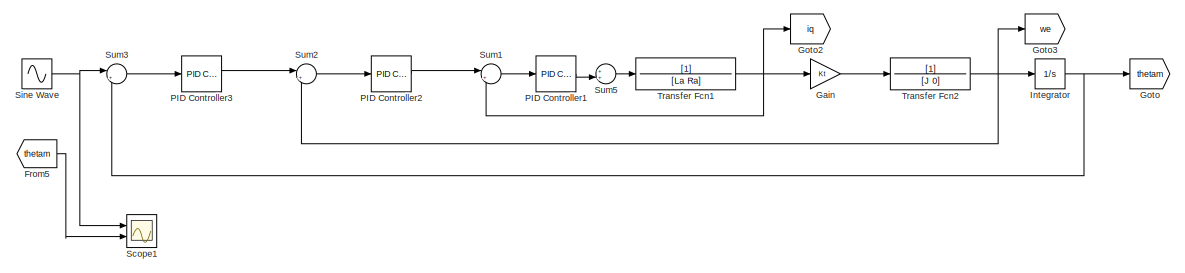
[diagram: root canvas - part 1/6, top left region]
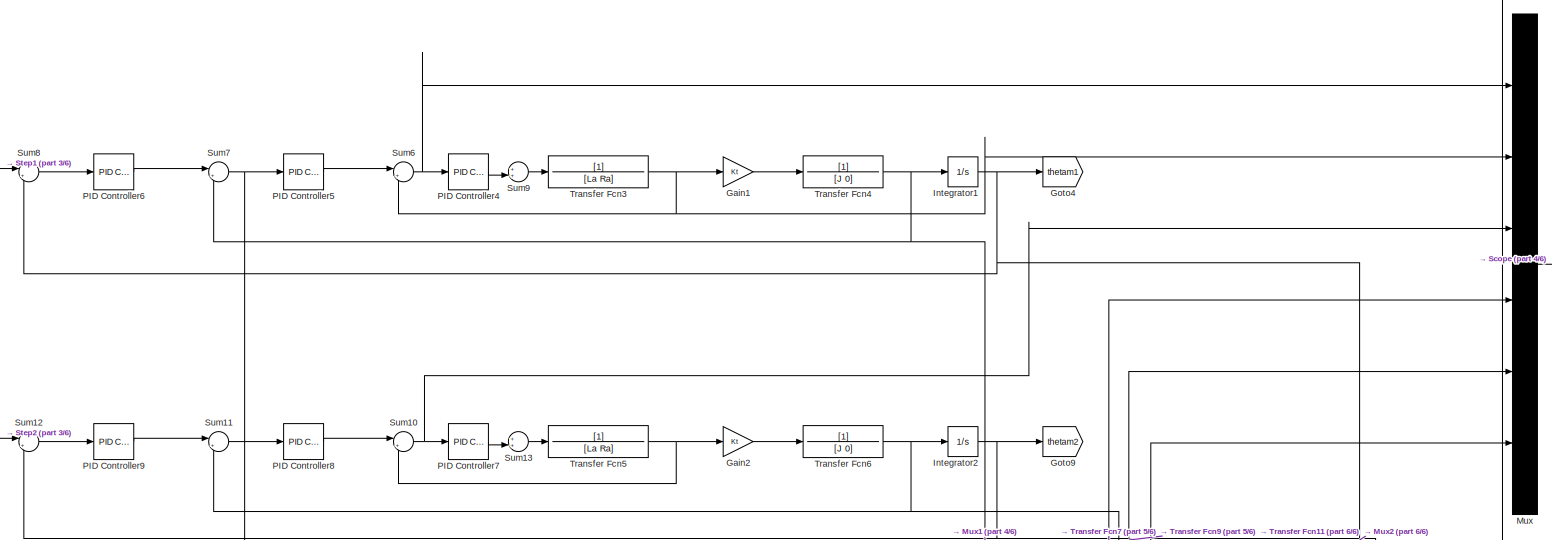
[diagram: root canvas - part 2/6, top center region]
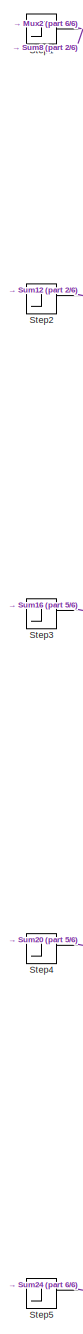
[diagram: root canvas - part 3/6, center side, full height]
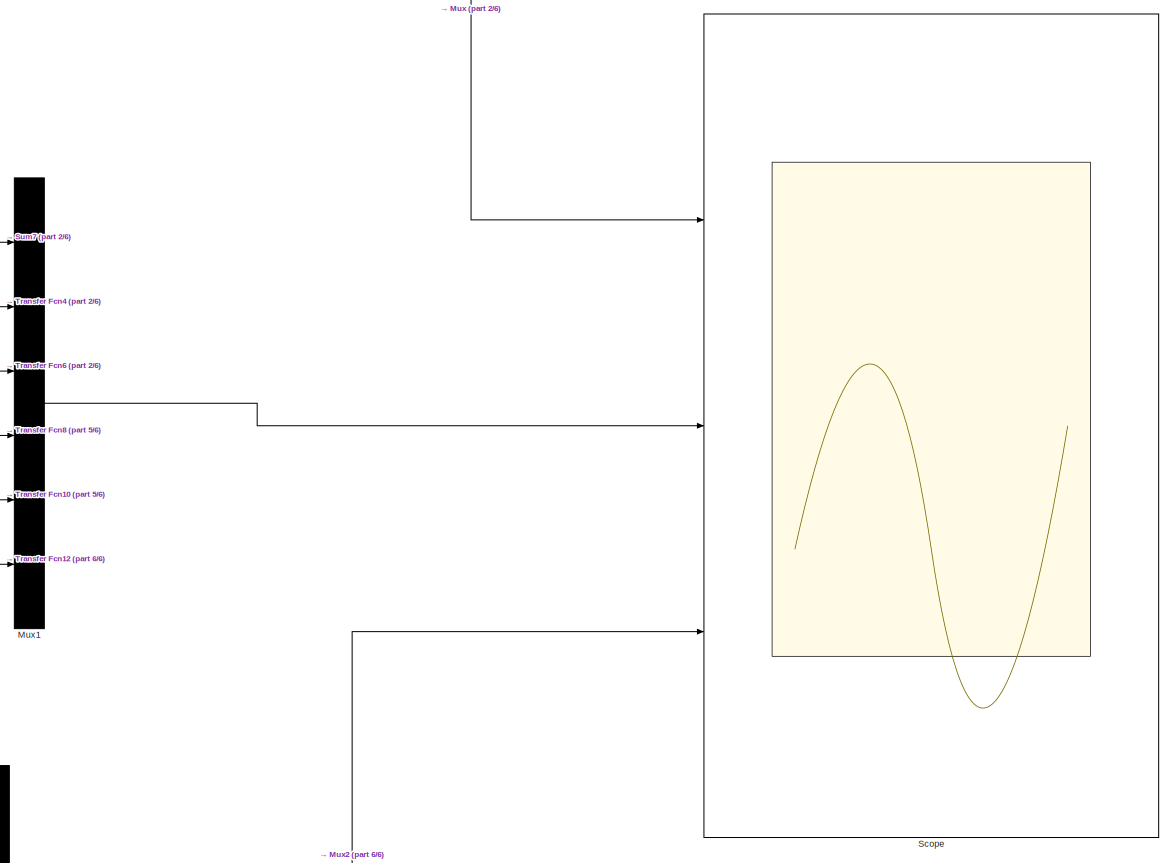
[diagram: root canvas - part 4/6, middle right region]
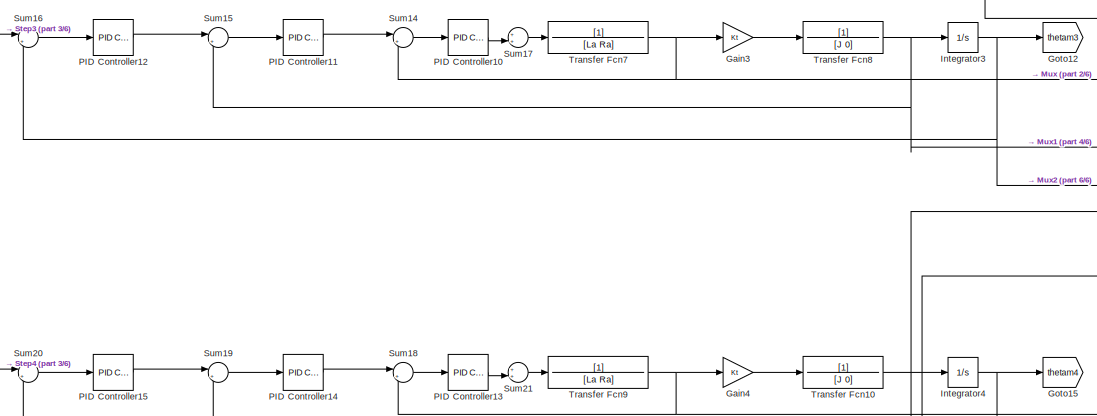
[diagram: root canvas - part 5/6, central region]
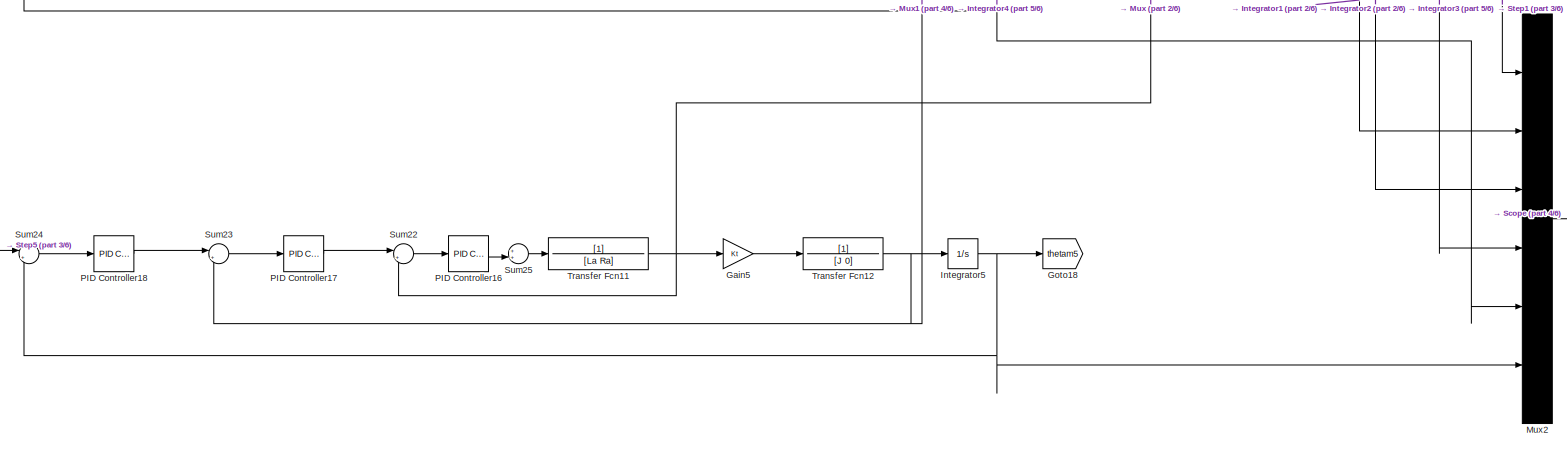
[diagram: root canvas - part 6/6, bottom center region]
MODEL slx_95a5ea91d995
KIND model
CONFIG AbsTol = auto
CONFIG EnableMultiTasking = off
CONFIG FixedStep = auto
CONFIG MaxStep = auto
CONFIG MinStep = auto
CONFIG RelTol = 1e-3
CONFIG SampleTimeConstraint = Unconstrained
CONFIG SolverName = VariableStepAuto
CONFIG StartTime = 0.0
CONFIG StopTime = 50
WORKSPACE source: mxarray member
WORKSPACE J = 4.09e-05
WORKSPACE Kt = 0.53
WORKSPACE La = 0.0101
WORKSPACE Ra = 1.6
BLOCK [From] From5
  GotoTag = thetam
BLOCK [Gain] Gain
  Gain = Kt
BLOCK [Gain] Gain1
  Commented = on
  Gain = Kt
BLOCK [Gain] Gain2
  Commented = on
  Gain = Kt
BLOCK [Gain] Gain3
  Commented = on
  Gain = Kt
BLOCK [Gain] Gain4
  Commented = on
  Gain = Kt
BLOCK [Gain] Gain5
  Commented = on
  Gain = Kt
BLOCK [Goto] Goto
  GotoTag = thetam
BLOCK [Goto] Goto12
  Commented = on
  GotoTag = thetam3
BLOCK [Goto] Goto15
  Commented = on
  GotoTag = thetam4
BLOCK [Goto] Goto18
  Commented = on
  GotoTag = thetam5
BLOCK [Goto] Goto2
  GotoTag = iq
BLOCK [Goto] Goto3
  GotoTag = we
BLOCK [Goto] Goto4
  Commented = on
  GotoTag = thetam1
BLOCK [Goto] Goto9
  Commented = on
  GotoTag = thetam2
BLOCK [Integrator] Integrator
  Ports = [1, 1]
BLOCK [Integrator] Integrator1
  Commented = on
  Ports = [1, 1]
BLOCK [Integrator] Integrator2
  Commented = on
  Ports = [1, 1]
BLOCK [Integrator] Integrator3
  Commented = on
  Ports = [1, 1]
BLOCK [Integrator] Integrator4
  Commented = on
  Ports = [1, 1]
BLOCK [Integrator] Integrator5
  Commented = on
  Ports = [1, 1]
BLOCK [Mux] Mux
  Commented = on
  DisplayOption = bar
  Inputs = 6
  Ports = [6, 1]
BLOCK [Mux] Mux1
  Commented = on
  DisplayOption = bar
  Inputs = 6
  Ports = [6, 1]
BLOCK [Mux] Mux2
  Commented = on
  DisplayOption = bar
  Inputs = 6
  Ports = [6, 1]
BLOCK [Reference] PID Controller1  REF=slpidlib/PID Controller
  Ports = [1, 1]
  SourceBlock = slpidlib/PID Controller
  SourceProductBaseCode = SL
  SourceType = PID 1dof
BLOCK [Reference] PID Controller10  REF=slpidlib/PID Controller
  Commented = on
  Ports = [1, 1]
  SourceBlock = slpidlib/PID Controller
  SourceProductBaseCode = SL
  SourceType = PID 1dof
BLOCK [Reference] PID Controller11  REF=slpidlib/PID Controller
  Commented = on
  Ports = [1, 1]
  SourceBlock = slpidlib/PID Controller
  SourceProductBaseCode = SL
  SourceType = PID 1dof
BLOCK [Reference] PID Controller12  REF=slpidlib/PID Controller
  Commented = on
  Ports = [1, 1]
  SourceBlock = slpidlib/PID Controller
  SourceProductBaseCode = SL
  SourceType = PID 1dof
BLOCK [Reference] PID Controller13  REF=slpidlib/PID Controller
  Commented = on
  Ports = [1, 1]
  SourceBlock = slpidlib/PID Controller
  SourceProductBaseCode = SL
  SourceType = PID 1dof
BLOCK [Reference] PID Controller14  REF=slpidlib/PID Controller
  Commented = on
  Ports = [1, 1]
  SourceBlock = slpidlib/PID Controller
  SourceProductBaseCode = SL
  SourceType = PID 1dof
BLOCK [Reference] PID Controller15  REF=slpidlib/PID Controller
  Commented = on
  Ports = [1, 1]
  SourceBlock = slpidlib/PID Controller
  SourceProductBaseCode = SL
  SourceType = PID 1dof
BLOCK [Reference] PID Controller16  REF=slpidlib/PID Controller
  Commented = on
  Ports = [1, 1]
  SourceBlock = slpidlib/PID Controller
  SourceProductBaseCode = SL
  SourceType = PID 1dof
BLOCK [Reference] PID Controller17  REF=slpidlib/PID Controller
  Commented = on
  Ports = [1, 1]
  SourceBlock = slpidlib/PID Controller
  SourceProductBaseCode = SL
  SourceType = PID 1dof
BLOCK [Reference] PID Controller18  REF=slpidlib/PID Controller
  Commented = on
  Ports = [1, 1]
  SourceBlock = slpidlib/PID Controller
  SourceProductBaseCode = SL
  SourceType = PID 1dof
BLOCK [Reference] PID Controller2  REF=slpidlib/PID Controller
  Ports = [1, 1]
  SourceBlock = slpidlib/PID Controller
  SourceProductBaseCode = SL
  SourceType = PID 1dof
BLOCK [Reference] PID Controller3  REF=slpidlib/PID Controller
  Ports = [1, 1]
  SourceBlock = slpidlib/PID Controller
  SourceProductBaseCode = SL
  SourceType = PID 1dof
BLOCK [Reference] PID Controller4  REF=slpidlib/PID Controller
  Commented = on
  Ports = [1, 1]
  SourceBlock = slpidlib/PID Controller
  SourceProductBaseCode = SL
  SourceType = PID 1dof
BLOCK [Reference] PID Controller5  REF=slpidlib/PID Controller
  Commented = on
  Ports = [1, 1]
  SourceBlock = slpidlib/PID Controller
  SourceProductBaseCode = SL
  SourceType = PID 1dof
BLOCK [Reference] PID Controller6  REF=slpidlib/PID Controller
  Commented = on
  Ports = [1, 1]
  SourceBlock = slpidlib/PID Controller
  SourceProductBaseCode = SL
  SourceType = PID 1dof
BLOCK [Reference] PID Controller7  REF=slpidlib/PID Controller
  Commented = on
  Ports = [1, 1]
  SourceBlock = slpidlib/PID Controller
  SourceProductBaseCode = SL
  SourceType = PID 1dof
BLOCK [Reference] PID Controller8  REF=slpidlib/PID Controller
  Commented = on
  Ports = [1, 1]
  SourceBlock = slpidlib/PID Controller
  SourceProductBaseCode = SL
  SourceType = PID 1dof
BLOCK [Reference] PID Controller9  REF=slpidlib/PID Controller
  Commented = on
  Ports = [1, 1]
  SourceBlock = slpidlib/PID Controller
  SourceProductBaseCode = SL
  SourceType = PID 1dof
BLOCK [Scope] Scope
  Commented = on
  Floating = off
  NumInputPorts = 3
  Ports = [3]
  ScopeSpecificationString = Simulink.scopes.TimeScopeBlockCfg('CurrentConfiguration', extmgr.ConfigurationSet(extmgr.Configuration('Core','General UI',true,'FigureColor',[0.8 0.8 0.8]),extmgr.Configuration('Core','Source UI',true),extmgr.Configuration('Sources','WiredSimulink',true),extmgr.Configuration('Visuals','Time Domain',true,'SerializedDisplays',{struct('MinYLimReal','-5.65747','MaxYLimReal','15.39632','YLabelReal',''...<+4504ch>
BLOCK [Scope] Scope1
  Floating = off
  NumInputPorts = 2
  Ports = [2]
  ScopeSpecificationString = Simulink.scopes.TimeScopeBlockCfg('CurrentConfiguration', extmgr.ConfigurationSet(extmgr.Configuration('Core','General UI',true,'FigureColor',[1 1 1]),extmgr.Configuration('Core','Source UI',true),extmgr.Configuration('Sources','WiredSimulink',true,'DataLoggingVariableName','ScopeData1'),extmgr.Configuration('Visuals','Time Domain',true,'SerializedDisplays',{struct('MinYLimReal','-108.40909','MaxY...<+1519ch>
BLOCK [Sin] Sine Wave
  Amplitude = 100
  Ports = [0, 1]
  SampleTime = 0
BLOCK [Step] Step1
  Commented = on
  SampleTime = 0
  Time = 0.1
BLOCK [Step] Step2
  Commented = on
  SampleTime = 0
  Time = 0.1
BLOCK [Step] Step3
  Commented = on
  SampleTime = 0
  Time = 0.1
BLOCK [Step] Step4
  Commented = on
  SampleTime = 0
  Time = 0.1
BLOCK [Step] Step5
  Commented = on
  SampleTime = 0
  Time = 0.1
BLOCK [Sum] Sum1
  Inputs = |+-
  Ports = [2, 1]
BLOCK [Sum] Sum10
  Commented = on
  Inputs = |+-
  Ports = [2, 1]
BLOCK [Sum] Sum11
  Commented = on
  Inputs = |+-
  Ports = [2, 1]
BLOCK [Sum] Sum12
  Commented = on
  Inputs = |+-
  Ports = [2, 1]
BLOCK [Sum] Sum13
  Commented = on
  Inputs = ++|
  Ports = [2, 1]
BLOCK [Sum] Sum14
  Commented = on
  Inputs = |+-
  Ports = [2, 1]
BLOCK [Sum] Sum15
  Commented = on
  Inputs = |+-
  Ports = [2, 1]
BLOCK [Sum] Sum16
  Commented = on
  Inputs = |+-
  Ports = [2, 1]
BLOCK [Sum] Sum17
  Commented = on
  Inputs = ++|
  Ports = [2, 1]
BLOCK [Sum] Sum18
  Commented = on
  Inputs = |+-
  Ports = [2, 1]
BLOCK [Sum] Sum19
  Commented = on
  Inputs = |+-
  Ports = [2, 1]
BLOCK [Sum] Sum2
  Inputs = |+-
  Ports = [2, 1]
BLOCK [Sum] Sum20
  Commented = on
  Inputs = |+-
  Ports = [2, 1]
BLOCK [Sum] Sum21
  Commented = on
  Inputs = ++|
  Ports = [2, 1]
BLOCK [Sum] Sum22
  Commented = on
  Inputs = |+-
  Ports = [2, 1]
BLOCK [Sum] Sum23
  Commented = on
  Inputs = |+-
  Ports = [2, 1]
BLOCK [Sum] Sum24
  Commented = on
  Inputs = |+-
  Ports = [2, 1]
BLOCK [Sum] Sum25
  Commented = on
  Inputs = ++|
  Ports = [2, 1]
BLOCK [Sum] Sum3
  Inputs = |+-
  Ports = [2, 1]
BLOCK [Sum] Sum5
  Inputs = ++|
  Ports = [2, 1]
BLOCK [Sum] Sum6
  Commented = on
  Inputs = |+-
  Ports = [2, 1]
BLOCK [Sum] Sum7
  Commented = on
  Inputs = |+-
  Ports = [2, 1]
BLOCK [Sum] Sum8
  Commented = on
  Inputs = |+-
  Ports = [2, 1]
BLOCK [Sum] Sum9
  Commented = on
  Inputs = ++|
  Ports = [2, 1]
BLOCK [TransferFcn] Transfer Fcn1
  Denominator = [La Ra]
BLOCK [TransferFcn] Transfer Fcn10
  Commented = on
  Denominator = [J 0]
BLOCK [TransferFcn] Transfer Fcn11
  Commented = on
  Denominator = [La Ra]
BLOCK [TransferFcn] Transfer Fcn12
  Commented = on
  Denominator = [J 0]
BLOCK [TransferFcn] Transfer Fcn2
  Denominator = [J 0]
BLOCK [TransferFcn] Transfer Fcn3
  Commented = on
  Denominator = [La Ra]
BLOCK [TransferFcn] Transfer Fcn4
  Commented = on
  Denominator = [J 0]
BLOCK [TransferFcn] Transfer Fcn5
  Commented = on
  Denominator = [La Ra]
BLOCK [TransferFcn] Transfer Fcn6
  Commented = on
  Denominator = [J 0]
BLOCK [TransferFcn] Transfer Fcn7
  Commented = on
  Denominator = [La Ra]
BLOCK [TransferFcn] Transfer Fcn8
  Commented = on
  Denominator = [J 0]
BLOCK [TransferFcn] Transfer Fcn9
  Commented = on
  Denominator = [La Ra]
LINE From5:1 -> Scope1:2
LINE Gain1:1 -> Transfer Fcn4:1
LINE Gain2:1 -> Transfer Fcn6:1
LINE Gain3:1 -> Transfer Fcn8:1
LINE Gain4:1 -> Transfer Fcn10:1
LINE Gain5:1 -> Transfer Fcn12:1
LINE Gain:1 -> Transfer Fcn2:1
NET Integrator1:1 -> Goto4:1, Mux2:2, Sum8:2
NET Integrator2:1 -> Goto9:1, Mux2:3, Sum12:2
NET Integrator3:1 -> Goto12:1, Mux2:4, Sum16:2
NET Integrator4:1 -> Goto15:1, Mux2:5, Sum20:2
NET Integrator5:1 -> Goto18:1, Mux2:6, Sum24:2
NET Integrator:1 -> Goto:1, Sum3:2
LINE Mux1:1 -> Scope:2
LINE Mux2:1 -> Scope:3
LINE Mux:1 -> Scope:1
LINE PID Controller10:1 -> Sum17:2
LINE PID Controller11:1 -> Sum14:1
LINE PID Controller12:1 -> Sum15:1
LINE PID Controller13:1 -> Sum21:2
LINE PID Controller14:1 -> Sum18:1
LINE PID Controller15:1 -> Sum19:1
LINE PID Controller16:1 -> Sum25:2
LINE PID Controller17:1 -> Sum22:1
LINE PID Controller18:1 -> Sum23:1
LINE PID Controller1:1 -> Sum5:2
LINE PID Controller2:1 -> Sum1:1
LINE PID Controller3:1 -> Sum2:1
LINE PID Controller4:1 -> Sum9:2
LINE PID Controller5:1 -> Sum6:1
LINE PID Controller6:1 -> Sum7:1
LINE PID Controller7:1 -> Sum13:2
LINE PID Controller8:1 -> Sum10:1
LINE PID Controller9:1 -> Sum11:1
NET Sine Wave:1 -> Scope1:1, Sum3:1
NET Step1:1 -> Mux2:1, Sum8:1
LINE Step2:1 -> Sum12:1
LINE Step3:1 -> Sum16:1
LINE Step4:1 -> Sum20:1
LINE Step5:1 -> Sum24:1
NET Sum10:1 -> Mux:3, PID Controller7:1
LINE Sum11:1 -> PID Controller8:1
LINE Sum12:1 -> PID Controller9:1
LINE Sum13:1 -> Transfer Fcn5:1
LINE Sum14:1 -> PID Controller10:1
LINE Sum15:1 -> PID Controller11:1
LINE Sum16:1 -> PID Controller12:1
LINE Sum17:1 -> Transfer Fcn7:1
LINE Sum18:1 -> PID Controller13:1
LINE Sum19:1 -> PID Controller14:1
LINE Sum1:1 -> PID Controller1:1
LINE Sum20:1 -> PID Controller15:1
LINE Sum21:1 -> Transfer Fcn9:1
LINE Sum22:1 -> PID Controller16:1
LINE Sum23:1 -> PID Controller17:1
LINE Sum24:1 -> PID Controller18:1
LINE Sum25:1 -> Transfer Fcn11:1
LINE Sum2:1 -> PID Controller2:1
LINE Sum3:1 -> PID Controller3:1
LINE Sum5:1 -> Transfer Fcn1:1
NET Sum6:1 -> Mux:1, PID Controller4:1
NET Sum7:1 -> Mux1:1, PID Controller5:1
LINE Sum8:1 -> PID Controller6:1
LINE Sum9:1 -> Transfer Fcn3:1
NET Transfer Fcn10:1 -> Integrator4:1, Mux1:5, Sum19:2
NET Transfer Fcn11:1 -> Gain5:1, Mux:6, Sum22:2
NET Transfer Fcn12:1 -> Integrator5:1, Mux1:6, Sum23:2
NET Transfer Fcn1:1 -> Gain:1, Goto2:1, Sum1:2
NET Transfer Fcn2:1 -> Goto3:1, Integrator:1, Sum2:2
NET Transfer Fcn3:1 -> Gain1:1, Mux:2, Sum6:2
NET Transfer Fcn4:1 -> Integrator1:1, Mux1:2, Sum7:2
NET Transfer Fcn5:1 -> Gain2:1, Sum10:2
NET Transfer Fcn6:1 -> Integrator2:1, Mux1:3, Sum11:2
NET Transfer Fcn7:1 -> Gain3:1, Mux:4, Sum14:2
NET Transfer Fcn8:1 -> Integrator3:1, Mux1:4, Sum15:2
NET Transfer Fcn9:1 -> Gain4:1, Mux:5, Sum18:2
note: NET lines group one-source signal fan-out (src -> all destinations, sorted); 1:1 wires keep LINE
